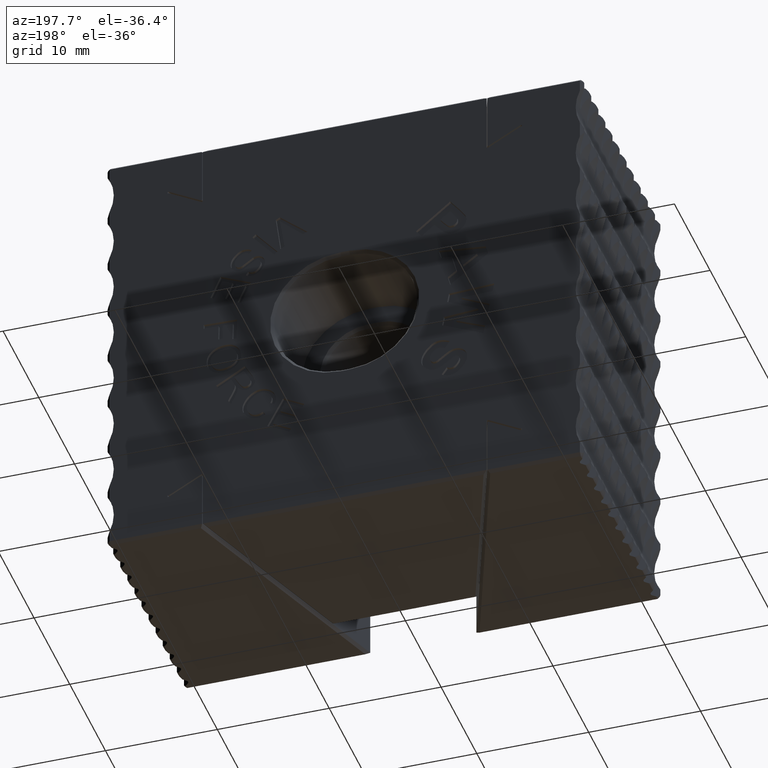
[diagram: clean part render]
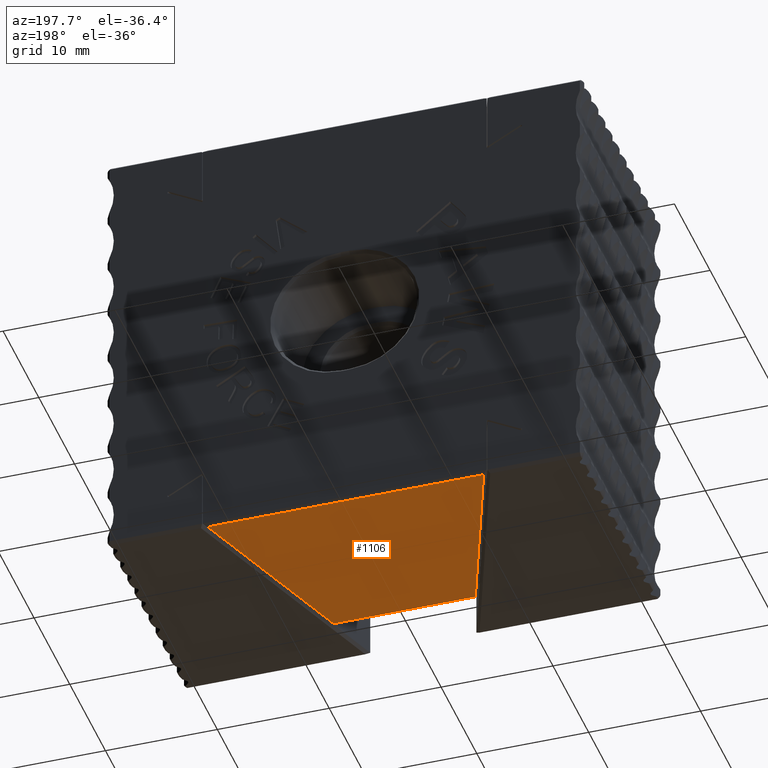
[diagram: same view with one face highlighted and labeled with its STEP entity id]
A machine part, auxiliary view. The second image highlights one B-rep face of the part: STEP entity #1106.
In plain terms, the highlighted planar face has unit normal (0, 0, -1).
Its self-contained STEP definition (entity closure, byte-faithful):
#923 = LINE ( 'NONE', #25985, #26360 ) ;
#1106 = ADVANCED_FACE ( 'NONE', ( #32758 ), #29113, .T. ) ;
#1485 = CARTESIAN_POINT ( 'NONE',  ( -0.2169281461729885840, -0.07895538818151415228, -0.7834645669291337988 ) ) ;
#2304 = CARTESIAN_POINT ( 'NONE',  ( -0.2493052596486546868, 0.01000000000000015807, -0.7834645669291337988 ) ) ;
#2401 = CARTESIAN_POINT ( 'NONE',  ( 0.4855219416874155258, 0.6589999999999998082, -0.7834645669291337988 ) ) ;
#2426 = LINE ( 'NONE', #30202, #21915 ) ;
#5032 = EDGE_CURVE ( 'NONE', #8248, #27302, #10683, .T. ) ;
#7190 = CARTESIAN_POINT ( 'NONE',  ( -0.4855219416874154703, 0.6589999999999998082, -0.7834645669291337988 ) ) ;
#8248 = VERTEX_POINT ( 'NONE', #2304 ) ;
#9562 = LINE ( 'NONE', #23161, #29039 ) ;
#9912 = VECTOR ( 'NONE', #19238, 39.37007874015748854 ) ;
#10683 = LINE ( 'NONE', #1485, #9912 ) ;
#10942 = DIRECTION ( 'NONE',  ( -1.000000000000000000, 0.0000000000000000000, 0.0000000000000000000 ) ) ;
#11313 = CARTESIAN_POINT ( 'NONE',  ( 0.0000000000000000000, 0.0000000000000000000, -0.7834645669291337988 ) ) ;
#11636 = VERTEX_POINT ( 'NONE', #2401 ) ;
#13894 = DIRECTION ( 'NONE',  ( -0.0000000000000000000, 0.0000000000000000000, -1.000000000000000000 ) ) ;
#16852 = ORIENTED_EDGE ( 'NONE', *, *, #29837, .T. ) ;
#19238 = DIRECTION ( 'NONE',  ( -0.3420201433256630508, 0.9396926207859103153, 0.0000000000000000000 ) ) ;
#21915 = VECTOR ( 'NONE', #24860, 39.37007874015748854 ) ;
#23161 = CARTESIAN_POINT ( 'NONE',  ( 0.4998034217548368852, 0.6589999999999998082, -0.7834645669291337988 ) ) ;
#23371 = DIRECTION ( 'NONE',  ( 1.000000000000000000, 0.0000000000000000000, 0.0000000000000000000 ) ) ;
#23569 = VERTEX_POINT ( 'NONE', #30233 ) ;
#24860 = DIRECTION ( 'NONE',  ( -0.3420201433256630508, -0.9396926207859103153, 0.0000000000000000000 ) ) ;
#24967 = AXIS2_PLACEMENT_3D ( 'NONE', #11313, #13894, #31673 ) ;
#25985 = CARTESIAN_POINT ( 'NONE',  ( -0.2563073350307520371, 0.01000000000000015807, -0.7834645669291337988 ) ) ;
#26360 = VECTOR ( 'NONE', #10942, 39.37007874015748143 ) ;
#26936 = ORIENTED_EDGE ( 'NONE', *, *, #31851, .T. ) ;
#27302 = VERTEX_POINT ( 'NONE', #7190 ) ;
#27545 = ORIENTED_EDGE ( 'NONE', *, *, #5032, .T. ) ;
#28003 = ORIENTED_EDGE ( 'NONE', *, *, #31460, .T. ) ;
#29039 = VECTOR ( 'NONE', #23371, 39.37007874015748143 ) ;
#29113 = PLANE ( 'NONE',  #24967 ) ;
#29837 = EDGE_CURVE ( 'NONE', #23569, #8248, #923, .T. ) ;
#30202 = CARTESIAN_POINT ( 'NONE',  ( 0.2469104088228927241, 0.003420201433256728988, -0.7834645669291337988 ) ) ;
#30233 = CARTESIAN_POINT ( 'NONE',  ( 0.2493052596486547146, 0.01000000000000015807, -0.7834645669291337988 ) ) ;
#31460 = EDGE_CURVE ( 'NONE', #11636, #23569, #2426, .T. ) ;
#31673 = DIRECTION ( 'NONE',  ( -1.000000000000000000, 0.0000000000000000000, 0.0000000000000000000 ) ) ;
#31851 = EDGE_CURVE ( 'NONE', #27302, #11636, #9562, .T. ) ;
#32675 = EDGE_LOOP ( 'NONE', ( #26936, #28003, #16852, #27545 ) ) ;
#32758 = FACE_OUTER_BOUND ( 'NONE', #32675, .T. ) ;